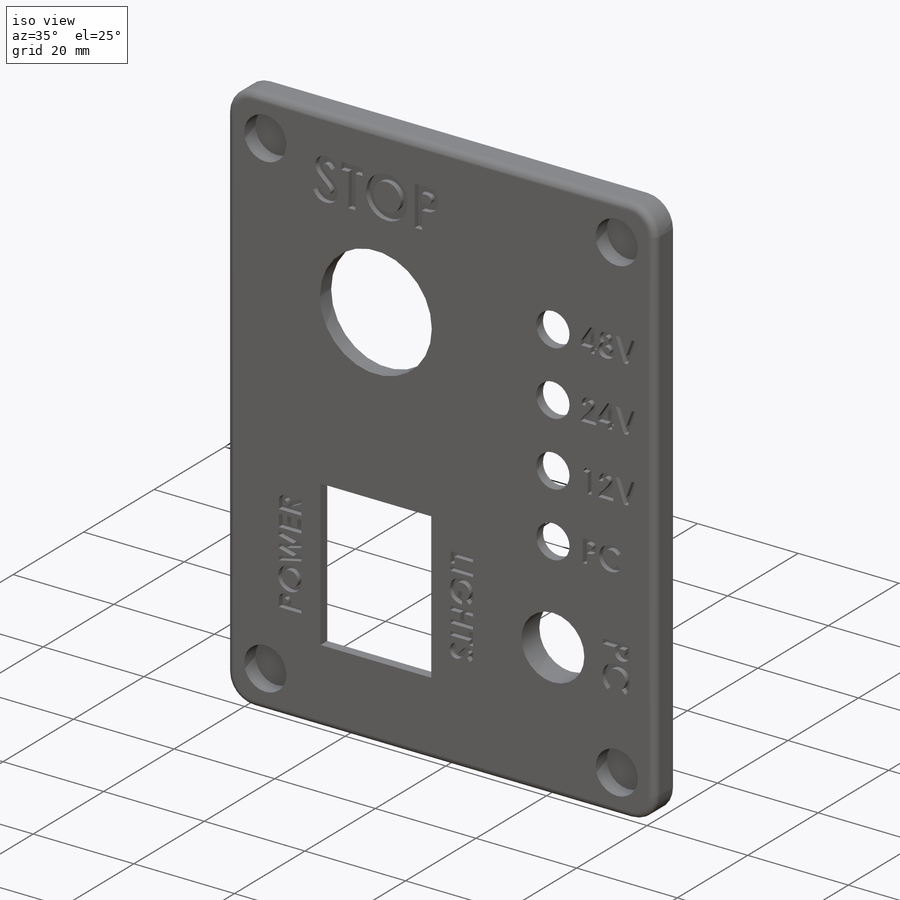
[diagram: iso view]
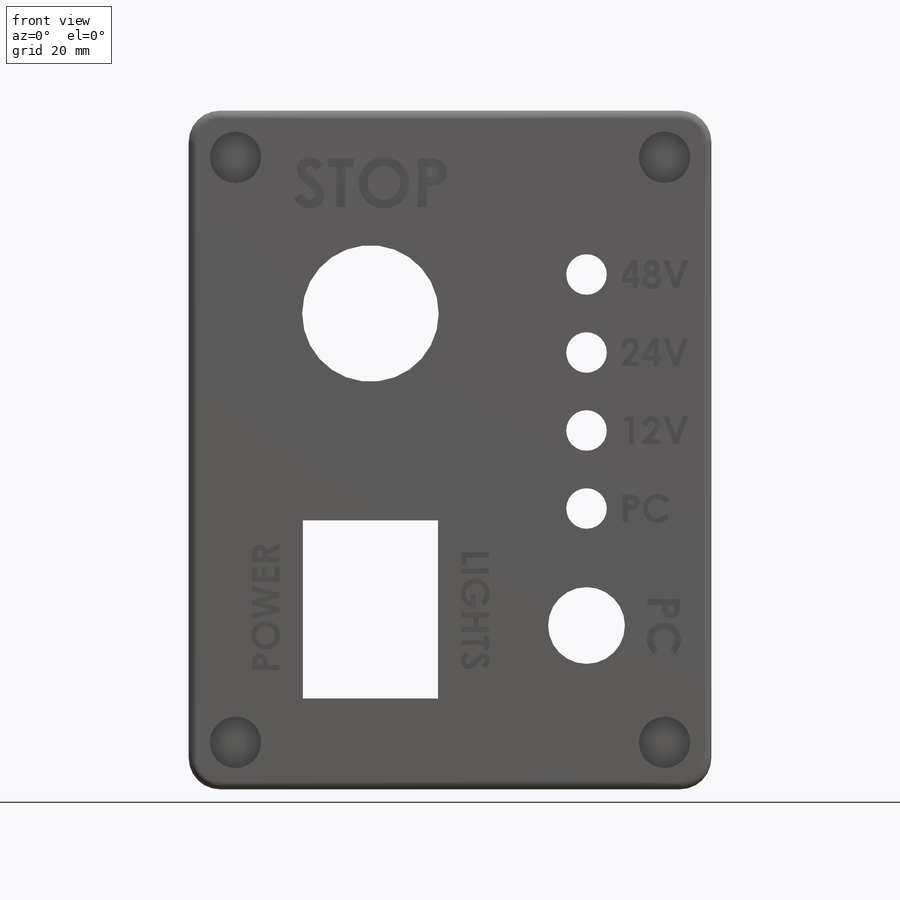
[diagram: front view]
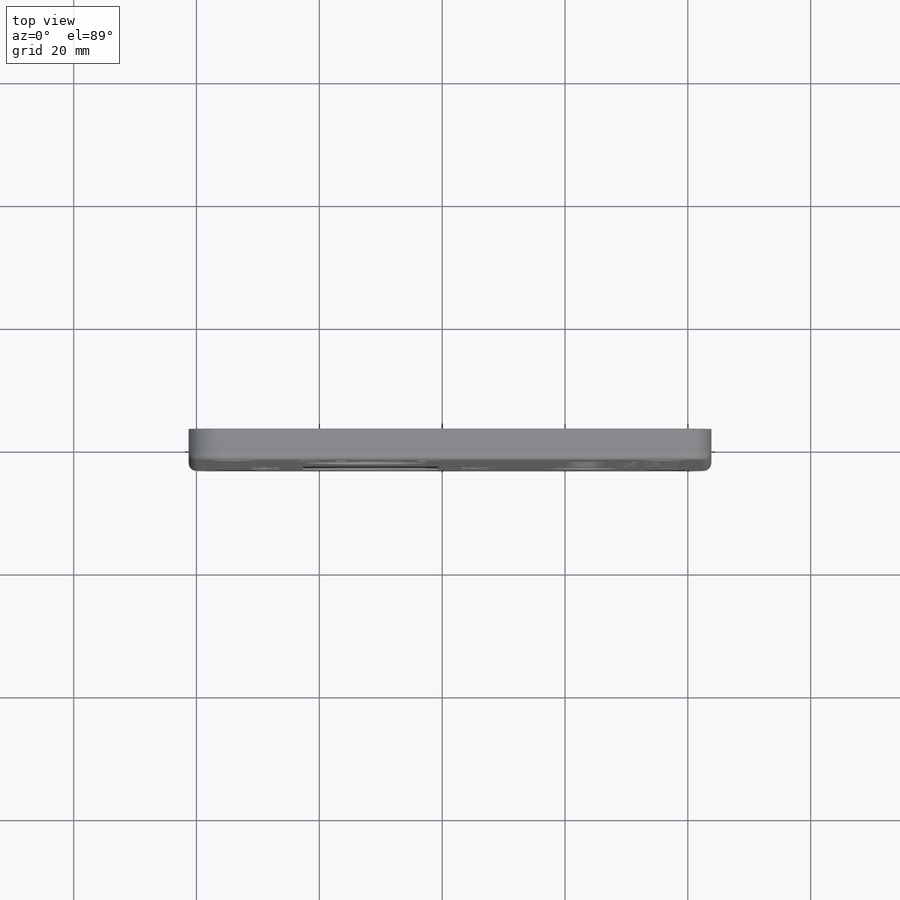
[diagram: top view]
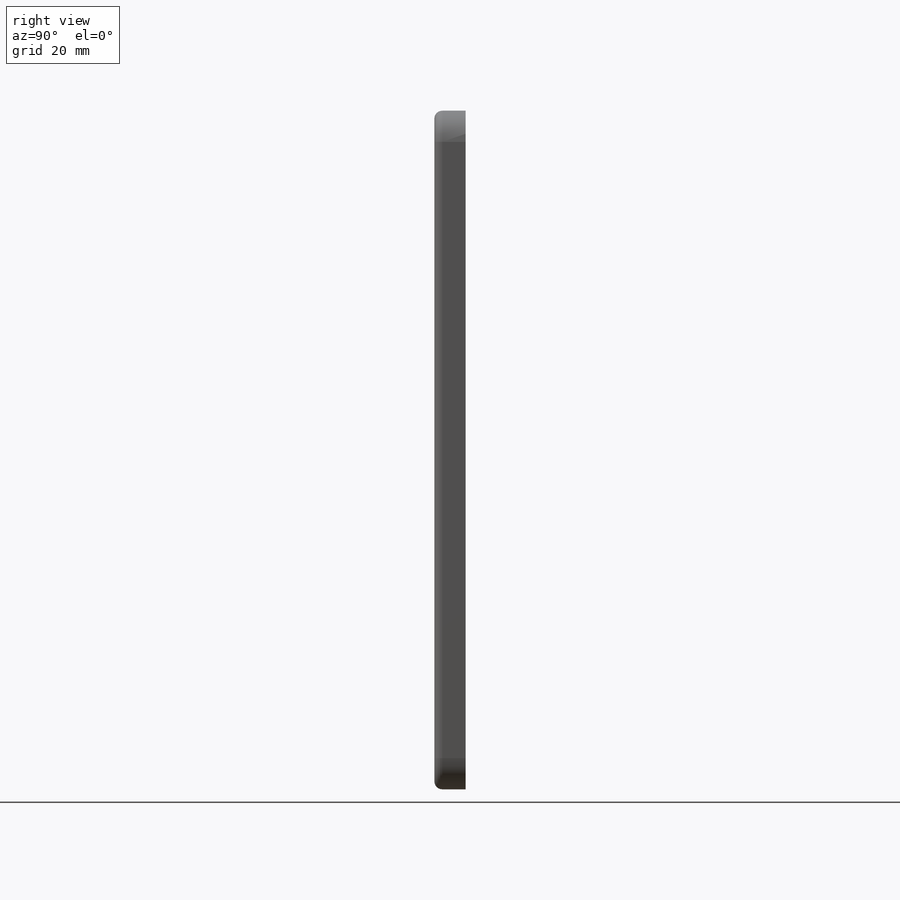
[diagram: right view]
SOLIDWORKS PART (.sldprt)
format: sldprt  version: not decoded by parser v0  size: 865,792 bytes
history: native  units: mm
features: sketch x6, extrude x3, cut_extrude x2, fillet x2, material x1 (+12 scaffold rows collapsed)
feature tree (26):
  scaffold x12  (default folders/planes/origin — collapsed)
  material  "Material <not specified>"
  sketch  "Guide Sketch"  dims[c1.D5=40.3098mm c1.D6=7.239mm c1.D9=15.0mm c1.D16=4.572mm c1.D17=10.16mm c1.D1=82.55mm c1.D2=107.95mm c1.D3=25.908mm c1.D4=31.0388mm c2.D6=~46.875359mm c2.D8=19.05mm c2.D9=25.4mm c2.D10=25.4mm c2.D11=15.367mm c2.D12=26.797mm c2.D13=15.367mm c3.D12=19.05mm c3.D13=~48.189406mm c3.D14=31.75mm c3.D15=~28.010594mm c4.D13=12.7mm c4.D18=6.35mm c4.D19=6.35mm c4.D7=4.0 c4.D21=2.0 c4.D20=2.0]
  sketch  "Sketch2"  dims[c1.D1=22.225mm c1.D2=6.604mm c1.D3=12.5mm c1.D5=8.382mm c2.D2=19.05mm c2.D6=22.0mm c2.D7=29.0mm c2.D4=1.27mm]
  extrude  ".125 Base"  Depth=3.175mm
  sketch  "Sketch3"  dims[D2=7.62mm D3=43.18mm D1=2.54mm]
  extrude  ".075 Face"  Depth=1.905mm
  sketch  "Sketch4"
  cut_extrude  "Reliefs for shallow mounts"  Depth=1.27mm
  fillet  "Round Corners"  Radius=5.08mm
  sketch  "Sketch5"  dims[c1.D1=~28.93768mm c1.D2=12.7mm c1.D3=~12.701287mm c2.D2=12.7mm c2.D3=12.7mm c2.D4=12.7mm c2.D5=3.81mm c2.D6=3.81mm]
  cut_extrude  "Lettering"  Depth=1mm
  sketch  "Sketch6"
  extrude  "Support Material"  Depth=0.2mm
  fillet  "Fillet2"  Radius=1.27mm
decode coverage: 11 of 13 modeling features carry decoded parameters
note: ~ marks probable driven/reference dimensions
note: suppression state not decoded; provenance and decode notes live in map.json
